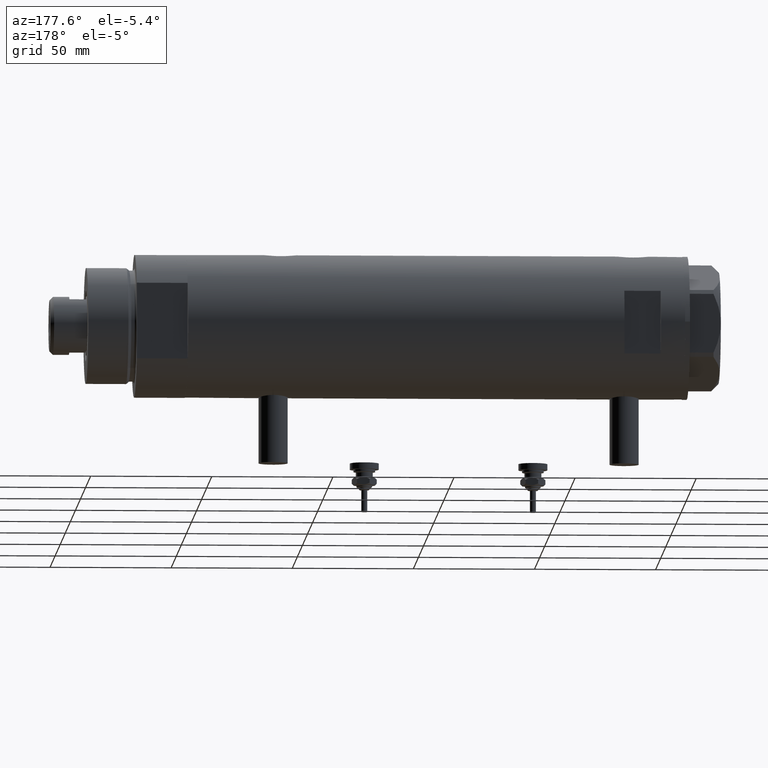
[diagram: clean part render]
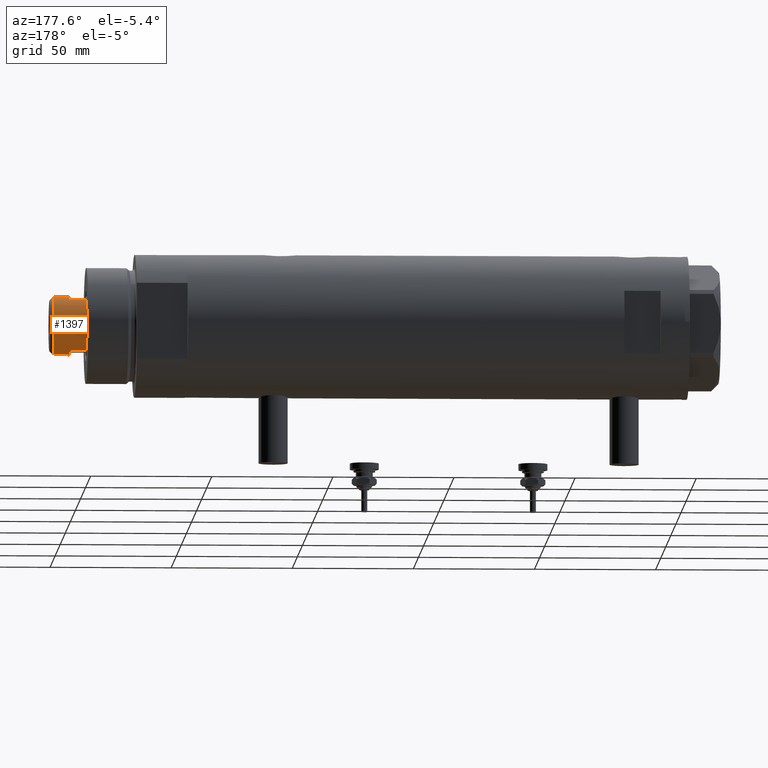
[diagram: same view with one face highlighted and labeled with its STEP entity id]
A machine part, auxiliary view. The second image highlights one B-rep face of the part: STEP entity #1397.
In plain terms, the highlighted cylindrical surface (edge-blend (fillet) strip) has radius 12 mm, axis along (-1, -0, 0).
Its self-contained STEP definition (entity closure, byte-faithful):
#27 = DIRECTION ( 'NONE',  ( -1.000000000000000000, 0.000000000000000000, 0.000000000000000000 ) ) ;
#87 = ORIENTED_EDGE ( 'NONE', *, *, #5058, .T. ) ;
#288 = AXIS2_PLACEMENT_3D ( 'NONE', #4690, #1521, #2418 ) ;
#313 = CARTESIAN_POINT ( 'NONE',  ( 12.00000000000000355, 1.469576158976824342E-15, 229.7000000000000171 ) ) ;
#384 = CARTESIAN_POINT ( 'NONE',  ( 0.000000000000000000, 0.000000000000000000, 229.7000000000000171 ) ) ;
#387 = AXIS2_PLACEMENT_3D ( 'NONE', #384, #1908, #3721 ) ;
#403 = EDGE_CURVE ( 'NONE', #693, #4479, #3679, .T. ) ;
#693 = VERTEX_POINT ( 'NONE', #5129 ) ;
#713 = AXIS2_PLACEMENT_3D ( 'NONE', #3949, #3156, #4941 ) ;
#994 = EDGE_CURVE ( 'NONE', #1969, #5135, #4103, .T. ) ;
#1007 = VECTOR ( 'NONE', #4395, 1000.000000000000000 ) ;
#1034 = CARTESIAN_POINT ( 'NONE',  ( -10.48861764008966269, 5.829999999999999183, 229.7000000000000171 ) ) ;
#1063 = CARTESIAN_POINT ( 'NONE',  ( 0.000000000000000000, 0.000000000000000000, 229.7000000000000171 ) ) ;
#1267 = CARTESIAN_POINT ( 'NONE',  ( 10.48861764008966269, 5.830000000000000071, 222.7000000000000171 ) ) ;
#1391 = EDGE_CURVE ( 'NONE', #693, #2574, #5558, .T. ) ;
#1394 = DIRECTION ( 'NONE',  ( -0.000000000000000000, -0.000000000000000000, -1.000000000000000000 ) ) ;
#1397 = ADVANCED_FACE ( 'NONE', ( #5595 ), #2808, .T. ) ;
#1521 = DIRECTION ( 'NONE',  ( 0.000000000000000000, 0.000000000000000000, -1.000000000000000000 ) ) ;
#1616 = VECTOR ( 'NONE', #2355, 1000.000000000000000 ) ;
#1623 = AXIS2_PLACEMENT_3D ( 'NONE', #1063, #1394, #27 ) ;
#1809 = CARTESIAN_POINT ( 'NONE',  ( 10.48861764008966269, 5.830000000000000071, 229.7000000000000171 ) ) ;
#1851 = CIRCLE ( 'NONE', #713, 12.00000000000000178 ) ;
#1908 = DIRECTION ( 'NONE',  ( 0.000000000000000000, 0.000000000000000000, 1.000000000000000000 ) ) ;
#1957 = DIRECTION ( 'NONE',  ( 1.000000000000000000, 0.000000000000000000, 0.000000000000000000 ) ) ;
#1969 = VERTEX_POINT ( 'NONE', #2937 ) ;
#2091 = CARTESIAN_POINT ( 'NONE',  ( 12.00000000000000000, 1.469576158976823947E-15, 229.7000000000000171 ) ) ;
#2131 = ORIENTED_EDGE ( 'NONE', *, *, #4192, .F. ) ;
#2247 = AXIS2_PLACEMENT_3D ( 'NONE', #2912, #3374, #1957 ) ;
#2305 = ORIENTED_EDGE ( 'NONE', *, *, #4971, .T. ) ;
#2355 = DIRECTION ( 'NONE',  ( -0.000000000000000000, -0.000000000000000000, -1.000000000000000000 ) ) ;
#2416 = VECTOR ( 'NONE', #3751, 1000.000000000000000 ) ;
#2418 = DIRECTION ( 'NONE',  ( 1.000000000000000000, 0.000000000000000000, 0.000000000000000000 ) ) ;
#2530 = CIRCLE ( 'NONE', #2247, 12.00000000000003908 ) ;
#2574 = VERTEX_POINT ( 'NONE', #4389 ) ;
#2663 = ORIENTED_EDGE ( 'NONE', *, *, #4427, .T. ) ;
#2808 = CYLINDRICAL_SURFACE ( 'NONE', #1623, 12.00000000000000000 ) ;
#2912 = CARTESIAN_POINT ( 'NONE',  ( 0.000000000000000000, 0.000000000000000000, 222.7000000000000171 ) ) ;
#2937 = CARTESIAN_POINT ( 'NONE',  ( -12.00000000000000000, 0.000000000000000000, 236.3000000000000682 ) ) ;
#2993 = VECTOR ( 'NONE', #4381, 1000.000000000000000 ) ;
#3156 = DIRECTION ( 'NONE',  ( 0.000000000000000000, 0.000000000000000000, 1.000000000000000000 ) ) ;
#3374 = DIRECTION ( 'NONE',  ( 0.000000000000000000, 0.000000000000000000, 1.000000000000000000 ) ) ;
#3375 = ORIENTED_EDGE ( 'NONE', *, *, #1391, .T. ) ;
#3679 = LINE ( 'NONE', #1034, #1616 ) ;
#3717 = EDGE_CURVE ( 'NONE', #5231, #5785, #4199, .T. ) ;
#3721 = DIRECTION ( 'NONE',  ( 1.000000000000000000, 0.000000000000000000, 0.000000000000000000 ) ) ;
#3751 = DIRECTION ( 'NONE',  ( -0.000000000000000000, -0.000000000000000000, -1.000000000000000000 ) ) ;
#3949 = CARTESIAN_POINT ( 'NONE',  ( 0.000000000000000000, 0.000000000000000000, 229.7000000000000171 ) ) ;
#4103 = CIRCLE ( 'NONE', #288, 12.00000000000000000 ) ;
#4192 = EDGE_CURVE ( 'NONE', #1969, #2574, #4816, .T. ) ;
#4199 = LINE ( 'NONE', #4574, #2416 ) ;
#4381 = DIRECTION ( 'NONE',  ( -0.000000000000000000, -0.000000000000000000, -1.000000000000000000 ) ) ;
#4389 = CARTESIAN_POINT ( 'NONE',  ( -12.00000000000000355, 0.000000000000000000, 229.7000000000000171 ) ) ;
#4395 = DIRECTION ( 'NONE',  ( -0.000000000000000000, -0.000000000000000000, -1.000000000000000000 ) ) ;
#4427 = EDGE_CURVE ( 'NONE', #5525, #5231, #1851, .T. ) ;
#4479 = VERTEX_POINT ( 'NONE', #4549 ) ;
#4549 = CARTESIAN_POINT ( 'NONE',  ( -10.48861764008966446, 5.830000000000074678, 222.7000000000000171 ) ) ;
#4574 = CARTESIAN_POINT ( 'NONE',  ( 10.48861764008966269, 5.830000000000000071, 229.7000000000000171 ) ) ;
#4690 = CARTESIAN_POINT ( 'NONE',  ( 0.000000000000000000, 0.000000000000000000, 236.3000000000000682 ) ) ;
#4816 = LINE ( 'NONE', #5476, #2993 ) ;
#4941 = DIRECTION ( 'NONE',  ( 1.000000000000000000, 0.000000000000000000, 0.000000000000000000 ) ) ;
#4946 = ORIENTED_EDGE ( 'NONE', *, *, #3717, .T. ) ;
#4962 = ORIENTED_EDGE ( 'NONE', *, *, #403, .F. ) ;
#4971 = EDGE_CURVE ( 'NONE', #5785, #4479, #2530, .T. ) ;
#5058 = EDGE_CURVE ( 'NONE', #5135, #5525, #5130, .T. ) ;
#5078 = ORIENTED_EDGE ( 'NONE', *, *, #994, .T. ) ;
#5129 = CARTESIAN_POINT ( 'NONE',  ( -10.48861764008966269, 5.829999999999999183, 229.7000000000000171 ) ) ;
#5130 = LINE ( 'NONE', #2091, #1007 ) ;
#5135 = VERTEX_POINT ( 'NONE', #5861 ) ;
#5231 = VERTEX_POINT ( 'NONE', #1809 ) ;
#5476 = CARTESIAN_POINT ( 'NONE',  ( -12.00000000000000000, 0.000000000000000000, 229.7000000000000171 ) ) ;
#5525 = VERTEX_POINT ( 'NONE', #313 ) ;
#5558 = CIRCLE ( 'NONE', #387, 12.00000000000000178 ) ;
#5564 = EDGE_LOOP ( 'NONE', ( #5078, #87, #2663, #4946, #2305, #4962, #3375, #2131 ) ) ;
#5595 = FACE_OUTER_BOUND ( 'NONE', #5564, .T. ) ;
#5785 = VERTEX_POINT ( 'NONE', #1267 ) ;
#5861 = CARTESIAN_POINT ( 'NONE',  ( 12.00000000000000000, 1.469576158976823947E-15, 236.3000000000000682 ) ) ;